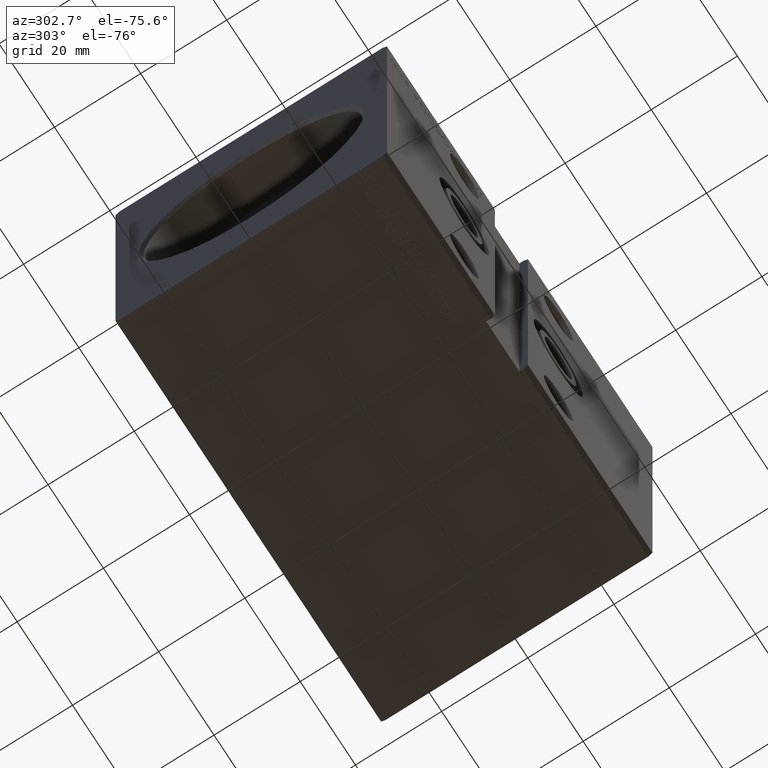
[diagram: clean part render]
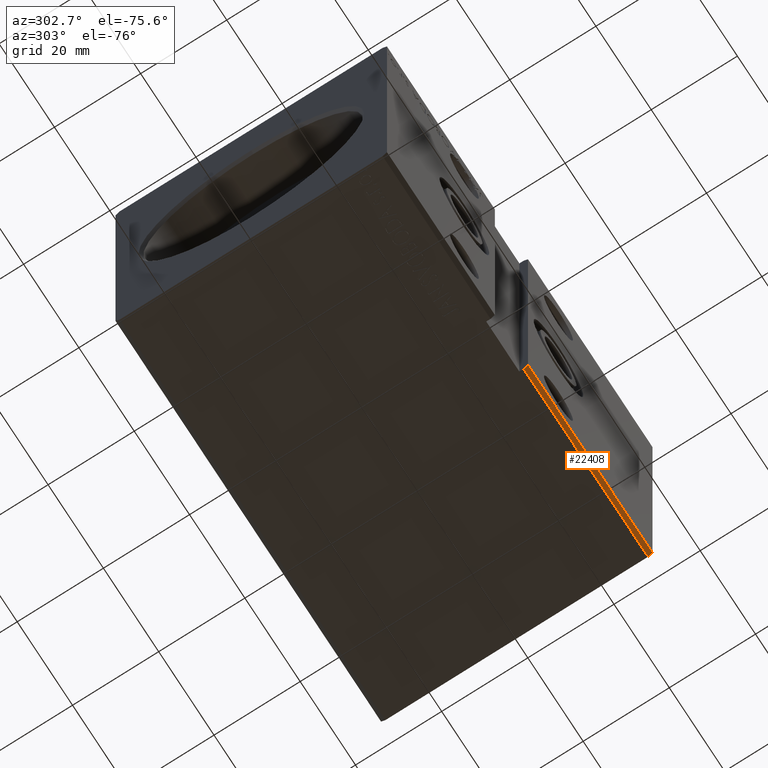
[diagram: same view with one face highlighted and labeled with its STEP entity id]
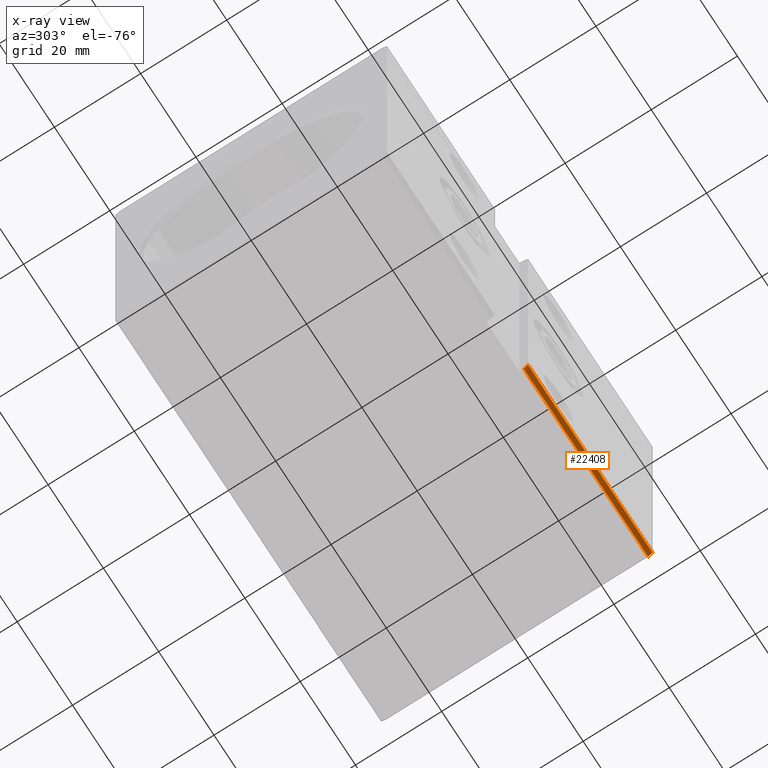
[diagram: x-ray of the same camera — body ghosted, the highlighted face saturated]
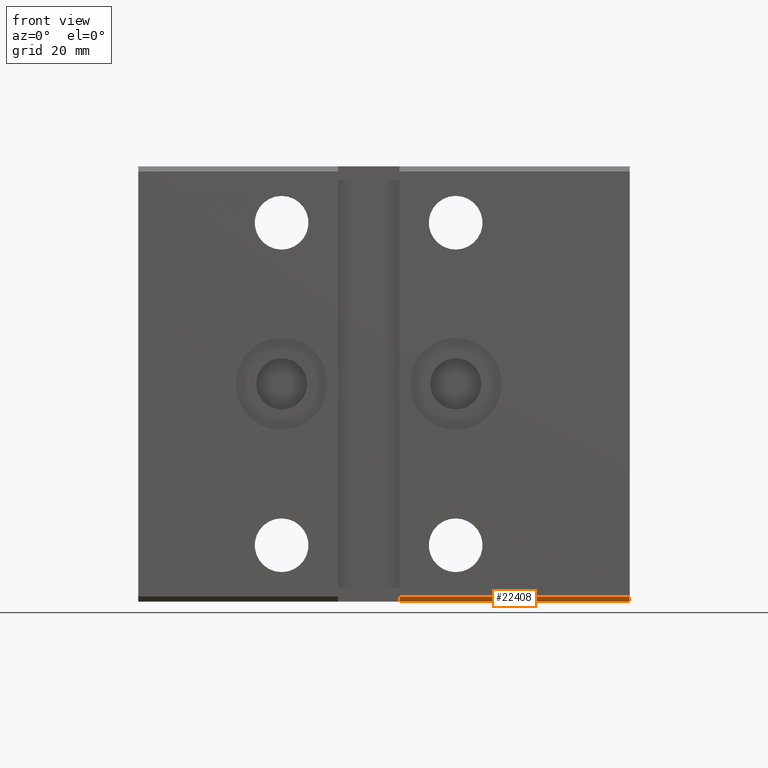
[diagram: same view with one face highlighted and labeled with its STEP entity id]
A machine part, auxiliary view. The second image highlights one B-rep face of the part: STEP entity #22408.
The next image is the same camera in x-ray: the body ghosted, the highlighted face saturated — about 0% of this face is hidden behind the body in this view.
A second angle (front view) of the same face is appended — the face is thin or edge-on in the first view.
In plain terms, the highlighted planar face has unit normal (-0, 0.7071, 0.7071).
Its self-contained STEP definition (entity closure, byte-faithful):
#858 = ORIENTED_EDGE ( 'NONE', *, *, #15229, .F. ) ;
#2588 = VERTEX_POINT ( 'NONE', #27043 ) ;
#4813 = VERTEX_POINT ( 'NONE', #8573 ) ;
#5179 = DIRECTION ( 'NONE',  ( -1.000000000000000000, -0.000000000000000000, -0.000000000000000000 ) ) ;
#6288 = FACE_OUTER_BOUND ( 'NONE', #17532, .T. ) ;
#6490 = DIRECTION ( 'NONE',  ( 0.000000000000000000, -0.7071067811865451302, 0.7071067811865500152 ) ) ;
#7835 = LINE ( 'NONE', #23863, #16269 ) ;
#7973 = ORIENTED_EDGE ( 'NONE', *, *, #31544, .T. ) ;
#8573 = CARTESIAN_POINT ( 'NONE',  ( 51.00000000000000711, -30.50000000000000711, -42.50000000000000711 ) ) ;
#8770 = PLANE ( 'NONE',  #9092 ) ;
#9092 = AXIS2_PLACEMENT_3D ( 'NONE', #18843, #15353, #6490 ) ;
#11118 = DIRECTION ( 'NONE',  ( 0.000000000000000000, 0.7071067811865451302, -0.7071067811865500152 ) ) ;
#14982 = DIRECTION ( 'NONE',  ( -1.000000000000000000, -0.000000000000000000, -0.000000000000000000 ) ) ;
#15229 = EDGE_CURVE ( 'NONE', #25353, #2588, #7835, .T. ) ;
#15353 = DIRECTION ( 'NONE',  ( -0.000000000000000000, 0.7071067811865500152, 0.7071067811865451302 ) ) ;
#16269 = VECTOR ( 'NONE', #11118, 1000.000000000000114 ) ;
#16850 = ORIENTED_EDGE ( 'NONE', *, *, #29611, .F. ) ;
#17532 = EDGE_LOOP ( 'NONE', ( #7973, #31235, #16850, #858 ) ) ;
#18843 = CARTESIAN_POINT ( 'NONE',  ( 96.00000000000000000, -31.50000000000000000, -41.50000000000000711 ) ) ;
#21162 = CARTESIAN_POINT ( 'NONE',  ( 96.00000000000000000, -30.50000000000000711, -42.50000000000000711 ) ) ;
#22408 = ADVANCED_FACE ( 'NONE', ( #6288 ), #8770, .F. ) ;
#23863 = CARTESIAN_POINT ( 'NONE',  ( 96.00000000000000000, -31.50000000000000000, -41.50000000000000711 ) ) ;
#24638 = LINE ( 'NONE', #21162, #27656 ) ;
#24963 = VECTOR ( 'NONE', #35198, 1000.000000000000114 ) ;
#25353 = VERTEX_POINT ( 'NONE', #37158 ) ;
#25751 = LINE ( 'NONE', #38297, #24963 ) ;
#26843 = EDGE_CURVE ( 'NONE', #36422, #4813, #25751, .T. ) ;
#27043 = CARTESIAN_POINT ( 'NONE',  ( 96.00000000000000000, -30.50000000000000711, -42.50000000000000711 ) ) ;
#27656 = VECTOR ( 'NONE', #14982, 1000.000000000000000 ) ;
#29611 = EDGE_CURVE ( 'NONE', #2588, #4813, #24638, .T. ) ;
#30190 = CARTESIAN_POINT ( 'NONE',  ( 51.00000000000000711, -31.50000000000000000, -41.50000000000000711 ) ) ;
#31235 = ORIENTED_EDGE ( 'NONE', *, *, #26843, .T. ) ;
#31544 = EDGE_CURVE ( 'NONE', #25353, #36422, #36426, .T. ) ;
#35198 = DIRECTION ( 'NONE',  ( 5.772398745160957218E-17, 0.7071067811865451302, -0.7071067811865500152 ) ) ;
#36422 = VERTEX_POINT ( 'NONE', #30190 ) ;
#36426 = LINE ( 'NONE', #36831, #38844 ) ;
#36831 = CARTESIAN_POINT ( 'NONE',  ( 96.00000000000000000, -31.50000000000000000, -41.50000000000000711 ) ) ;
#37158 = CARTESIAN_POINT ( 'NONE',  ( 96.00000000000000000, -31.50000000000000000, -41.50000000000000711 ) ) ;
#38297 = CARTESIAN_POINT ( 'NONE',  ( 51.00000000000000711, -31.50000000000000000, -41.50000000000000711 ) ) ;
#38844 = VECTOR ( 'NONE', #5179, 1000.000000000000000 ) ;